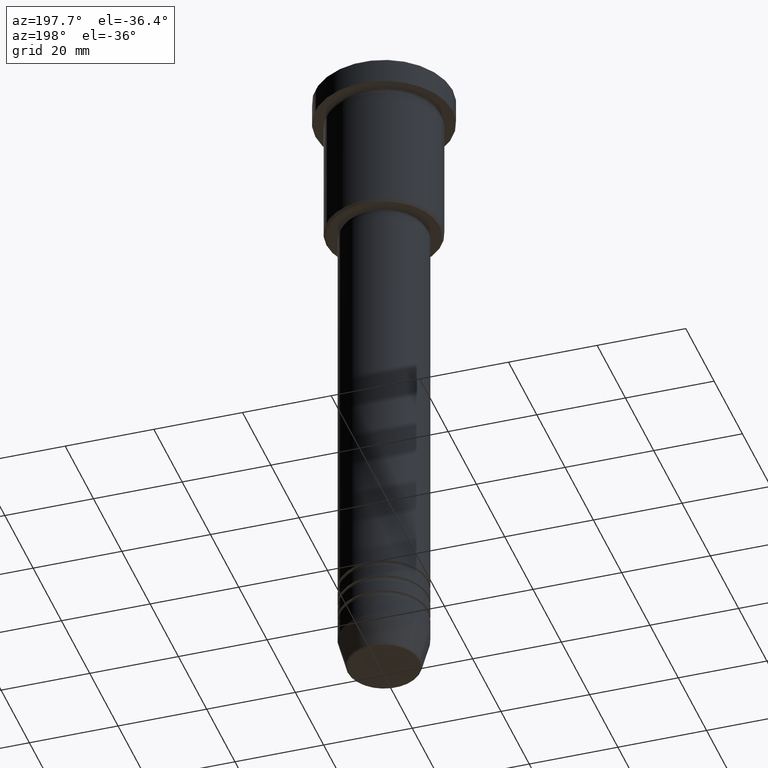
[diagram: clean part render]
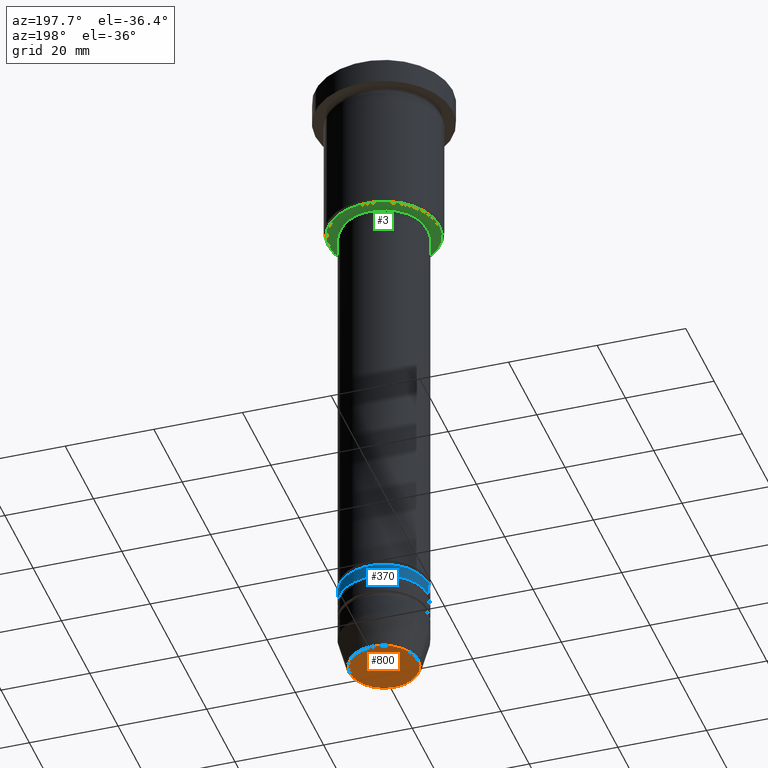
[diagram: same view with three faces highlighted in distinct colors, each labeled with its STEP entity id]
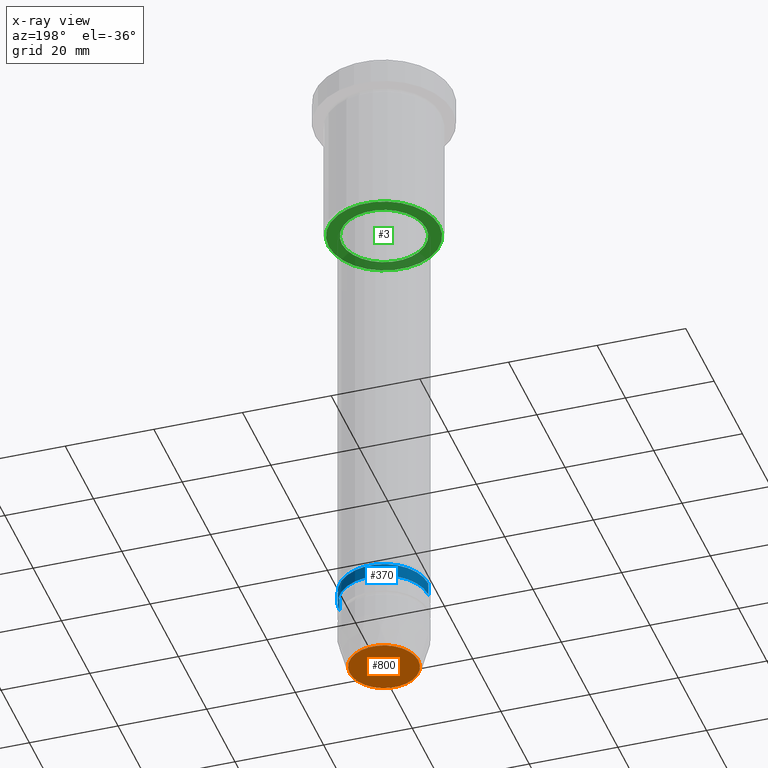
[diagram: x-ray of the same camera — body ghosted, the three highlighted faces saturated]
A machine part, auxiliary view with three faces highlighted in distinct colors.
The next image is the same camera in x-ray (body ghosted, the three faces saturated) — at least one of them is partly hidden behind the body in this view.
Their STEP definitions:

[orange] entity #800 — the highlighted planar face has unit normal (0, -0, 1).
#7 = VERTEX_POINT ( 'NONE', #395 ) ;
#15 = CARTESIAN_POINT ( 'NONE',  ( 0.000000000000000000, 0.000000000000000000, -151.0000000000000284 ) ) ;
#35 = PLANE ( 'NONE',  #307 ) ;
#65 = DIRECTION ( 'NONE',  ( 1.000000000000000000, 0.000000000000000000, 0.000000000000000000 ) ) ;
#78 = DIRECTION ( 'NONE',  ( 1.000000000000000000, 0.000000000000000000, 0.000000000000000000 ) ) ;
#91 = VERTEX_POINT ( 'NONE', #120 ) ;
#120 = CARTESIAN_POINT ( 'NONE',  ( -7.740692158992660055, 9.775343368540039135E-16, -151.0000000000000284 ) ) ;
#123 = CARTESIAN_POINT ( 'NONE',  ( 0.000000000000000000, 0.000000000000000000, -151.0000000000000284 ) ) ;
#178 = ORIENTED_EDGE ( 'NONE', *, *, #504, .T. ) ;
#206 = DIRECTION ( 'NONE',  ( 1.000000000000000000, 0.000000000000000000, 0.000000000000000000 ) ) ;
#245 = EDGE_CURVE ( 'NONE', #7, #91, #683, .T. ) ;
#307 = AXIS2_PLACEMENT_3D ( 'NONE', #123, #329, #206 ) ;
#329 = DIRECTION ( 'NONE',  ( 0.000000000000000000, -0.000000000000000000, 1.000000000000000000 ) ) ;
#395 = CARTESIAN_POINT ( 'NONE',  ( 7.740692158992660055, 0.000000000000000000, -151.0000000000000284 ) ) ;
#457 = ORIENTED_EDGE ( 'NONE', *, *, #245, .T. ) ;
#483 = AXIS2_PLACEMENT_3D ( 'NONE', #891, #635, #78 ) ;
#504 = EDGE_CURVE ( 'NONE', #91, #7, #1021, .T. ) ;
#635 = DIRECTION ( 'NONE',  ( 0.000000000000000000, 0.000000000000000000, -1.000000000000000000 ) ) ;
#683 = CIRCLE ( 'NONE', #483, 7.740692158992660055 ) ;
#800 = ADVANCED_FACE ( 'NONE', ( #1134 ), #35, .F. ) ;
#804 = AXIS2_PLACEMENT_3D ( 'NONE', #15, #967, #65 ) ;
#891 = CARTESIAN_POINT ( 'NONE',  ( 0.000000000000000000, 0.000000000000000000, -151.0000000000000284 ) ) ;
#967 = DIRECTION ( 'NONE',  ( 0.000000000000000000, 0.000000000000000000, -1.000000000000000000 ) ) ;
#975 = EDGE_LOOP ( 'NONE', ( #457, #178 ) ) ;
#1021 = CIRCLE ( 'NONE', #804, 7.740692158992660055 ) ;
#1134 = FACE_OUTER_BOUND ( 'NONE', #975, .T. ) ;

[blue] entity #370 — the highlighted cylindrical surface (partial cylindrical patch) has radius 10 mm, axis along (-0, -0, 1).
#43 = VECTOR ( 'NONE', #833, 1000.000000000000000 ) ;
#70 = EDGE_LOOP ( 'NONE', ( #981, #374, #382, #881 ) ) ;
#92 = DIRECTION ( 'NONE',  ( 1.000000000000000000, 0.000000000000000000, 0.000000000000000000 ) ) ;
#166 = EDGE_CURVE ( 'NONE', #615, #292, #467, .T. ) ;
#235 = CARTESIAN_POINT ( 'NONE',  ( 0.000000000000000000, 0.000000000000000000, -130.9999999999998863 ) ) ;
#247 = DIRECTION ( 'NONE',  ( 1.000000000000000000, 0.000000000000000000, 0.000000000000000000 ) ) ;
#286 = LINE ( 'NONE', #1002, #43 ) ;
#292 = VERTEX_POINT ( 'NONE', #821 ) ;
#322 = EDGE_CURVE ( 'NONE', #443, #292, #550, .T. ) ;
#348 = DIRECTION ( 'NONE',  ( -0.000000000000000000, -0.000000000000000000, 1.000000000000000000 ) ) ;
#370 = ADVANCED_FACE ( 'NONE', ( #724 ), #830, .T. ) ;
#374 = ORIENTED_EDGE ( 'NONE', *, *, #322, .T. ) ;
#380 = CARTESIAN_POINT ( 'NONE',  ( -10.00000000000000178, 1.224646799147353454E-15, -133.9999999999999147 ) ) ;
#382 = ORIENTED_EDGE ( 'NONE', *, *, #166, .F. ) ;
#419 = EDGE_CURVE ( 'NONE', #816, #443, #919, .T. ) ;
#443 = VERTEX_POINT ( 'NONE', #380 ) ;
#444 = VECTOR ( 'NONE', #1013, 1000.000000000000000 ) ;
#467 = CIRCLE ( 'NONE', #1130, 10.00000000000000000 ) ;
#472 = CARTESIAN_POINT ( 'NONE',  ( 10.00000000000000000, 0.000000000000000000, -130.9999999999998863 ) ) ;
#502 = CARTESIAN_POINT ( 'NONE',  ( 10.00000000000000178, 0.000000000000000000, -133.9999999999999147 ) ) ;
#506 = DIRECTION ( 'NONE',  ( -0.000000000000000000, -0.000000000000000000, 1.000000000000000000 ) ) ;
#550 = LINE ( 'NONE', #733, #444 ) ;
#615 = VERTEX_POINT ( 'NONE', #472 ) ;
#724 = FACE_OUTER_BOUND ( 'NONE', #70, .T. ) ;
#733 = CARTESIAN_POINT ( 'NONE',  ( -10.00000000000000178, 1.224646799147353454E-15, 0.000000000000000000 ) ) ;
#816 = VERTEX_POINT ( 'NONE', #502 ) ;
#821 = CARTESIAN_POINT ( 'NONE',  ( -10.00000000000000000, 1.224646799147353256E-15, -130.9999999999998863 ) ) ;
#823 = AXIS2_PLACEMENT_3D ( 'NONE', #1032, #1127, #1029 ) ;
#830 = CYLINDRICAL_SURFACE ( 'NONE', #938, 10.00000000000000178 ) ;
#833 = DIRECTION ( 'NONE',  ( -0.000000000000000000, -0.000000000000000000, 1.000000000000000000 ) ) ;
#881 = ORIENTED_EDGE ( 'NONE', *, *, #986, .F. ) ;
#919 = CIRCLE ( 'NONE', #823, 10.00000000000000178 ) ;
#938 = AXIS2_PLACEMENT_3D ( 'NONE', #1176, #348, #92 ) ;
#981 = ORIENTED_EDGE ( 'NONE', *, *, #419, .T. ) ;
#986 = EDGE_CURVE ( 'NONE', #816, #615, #286, .T. ) ;
#1002 = CARTESIAN_POINT ( 'NONE',  ( 10.00000000000000178, 0.000000000000000000, 0.000000000000000000 ) ) ;
#1013 = DIRECTION ( 'NONE',  ( -0.000000000000000000, -0.000000000000000000, 1.000000000000000000 ) ) ;
#1029 = DIRECTION ( 'NONE',  ( 1.000000000000000000, 0.000000000000000000, 0.000000000000000000 ) ) ;
#1032 = CARTESIAN_POINT ( 'NONE',  ( 0.000000000000000000, 0.000000000000000000, -133.9999999999999147 ) ) ;
#1127 = DIRECTION ( 'NONE',  ( -0.000000000000000000, -0.000000000000000000, 1.000000000000000000 ) ) ;
#1130 = AXIS2_PLACEMENT_3D ( 'NONE', #235, #506, #247 ) ;
#1176 = CARTESIAN_POINT ( 'NONE',  ( 0.000000000000000000, 0.000000000000000000, 0.000000000000000000 ) ) ;

[green] entity #3 — the highlighted planar face has unit normal (0, 0, -1).
#3 = ADVANCED_FACE ( 'NONE', ( #617, #898 ), #1081, .T. ) ;
#24 = DIRECTION ( 'NONE',  ( 1.000000000000000000, 0.000000000000000000, 0.000000000000000000 ) ) ;
#31 = CARTESIAN_POINT ( 'NONE',  ( -9.500000000000001776, 1.163414459189985682E-15, -36.00000000000000000 ) ) ;
#37 = CARTESIAN_POINT ( 'NONE',  ( 0.000000000000000000, 0.000000000000000000, -36.00000000000000000 ) ) ;
#88 = CARTESIAN_POINT ( 'NONE',  ( 0.000000000000000000, 0.000000000000000000, -36.00000000000000711 ) ) ;
#214 = DIRECTION ( 'NONE',  ( 1.000000000000000000, 0.000000000000000000, 0.000000000000000000 ) ) ;
#225 = CIRCLE ( 'NONE', #682, 12.50000000000002487 ) ;
#279 = VERTEX_POINT ( 'NONE', #544 ) ;
#304 = DIRECTION ( 'NONE',  ( -1.000000000000000000, 0.000000000000000000, 0.000000000000000000 ) ) ;
#323 = EDGE_LOOP ( 'NONE', ( #541, #1153 ) ) ;
#333 = AXIS2_PLACEMENT_3D ( 'NONE', #37, #668, #214 ) ;
#387 = CARTESIAN_POINT ( 'NONE',  ( 9.500000000000001776, 0.000000000000000000, -36.00000000000000000 ) ) ;
#424 = AXIS2_PLACEMENT_3D ( 'NONE', #626, #1088, #751 ) ;
#461 = ORIENTED_EDGE ( 'NONE', *, *, #503, .T. ) ;
#479 = CARTESIAN_POINT ( 'NONE',  ( 0.000000000000000000, 0.000000000000000000, -36.00000000000000711 ) ) ;
#503 = EDGE_CURVE ( 'NONE', #1157, #532, #1089, .T. ) ;
#530 = AXIS2_PLACEMENT_3D ( 'NONE', #753, #739, #24 ) ;
#532 = VERTEX_POINT ( 'NONE', #31 ) ;
#541 = ORIENTED_EDGE ( 'NONE', *, *, #667, .T. ) ;
#544 = CARTESIAN_POINT ( 'NONE',  ( -12.50000000000002487, 1.561424668912876886E-15, -36.00000000000000711 ) ) ;
#598 = CARTESIAN_POINT ( 'NONE',  ( 12.50000000000002487, 0.000000000000000000, -36.00000000000000711 ) ) ;
#617 = FACE_OUTER_BOUND ( 'NONE', #323, .T. ) ;
#626 = CARTESIAN_POINT ( 'NONE',  ( 0.000000000000000000, 13.00000000000000000, -36.00000000000000711 ) ) ;
#656 = DIRECTION ( 'NONE',  ( 0.000000000000000000, 0.000000000000000000, -1.000000000000000000 ) ) ;
#667 = EDGE_CURVE ( 'NONE', #705, #279, #699, .T. ) ;
#668 = DIRECTION ( 'NONE',  ( -0.000000000000000000, -0.000000000000000000, 1.000000000000000000 ) ) ;
#682 = AXIS2_PLACEMENT_3D ( 'NONE', #88, #1007, #1091 ) ;
#691 = ORIENTED_EDGE ( 'NONE', *, *, #1094, .T. ) ;
#699 = CIRCLE ( 'NONE', #861, 12.50000000000002487 ) ;
#705 = VERTEX_POINT ( 'NONE', #598 ) ;
#739 = DIRECTION ( 'NONE',  ( -0.000000000000000000, -0.000000000000000000, 1.000000000000000000 ) ) ;
#751 = DIRECTION ( 'NONE',  ( -1.000000000000000000, 0.000000000000000000, -0.000000000000000000 ) ) ;
#753 = CARTESIAN_POINT ( 'NONE',  ( 0.000000000000000000, 0.000000000000000000, -36.00000000000000000 ) ) ;
#861 = AXIS2_PLACEMENT_3D ( 'NONE', #479, #656, #304 ) ;
#898 = FACE_BOUND ( 'NONE', #997, .T. ) ;
#913 = CIRCLE ( 'NONE', #530, 9.500000000000001776 ) ;
#997 = EDGE_LOOP ( 'NONE', ( #461, #691 ) ) ;
#1007 = DIRECTION ( 'NONE',  ( 0.000000000000000000, 0.000000000000000000, -1.000000000000000000 ) ) ;
#1022 = EDGE_CURVE ( 'NONE', #279, #705, #225, .T. ) ;
#1081 = PLANE ( 'NONE',  #424 ) ;
#1088 = DIRECTION ( 'NONE',  ( 0.000000000000000000, 0.000000000000000000, -1.000000000000000000 ) ) ;
#1089 = CIRCLE ( 'NONE', #333, 9.500000000000001776 ) ;
#1091 = DIRECTION ( 'NONE',  ( -1.000000000000000000, 0.000000000000000000, 0.000000000000000000 ) ) ;
#1094 = EDGE_CURVE ( 'NONE', #532, #1157, #913, .T. ) ;
#1153 = ORIENTED_EDGE ( 'NONE', *, *, #1022, .T. ) ;
#1157 = VERTEX_POINT ( 'NONE', #387 ) ;